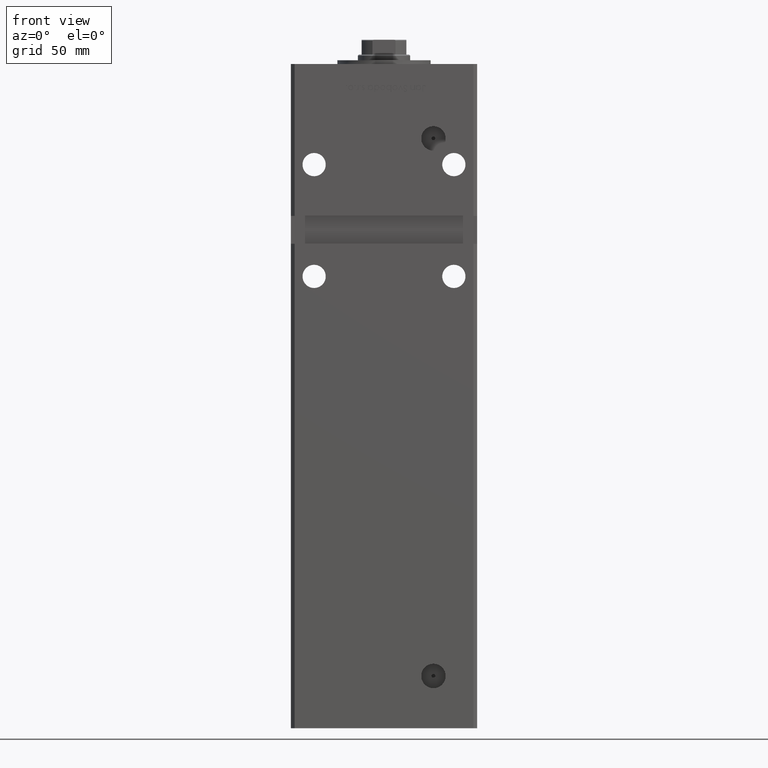
[diagram: clean part render]
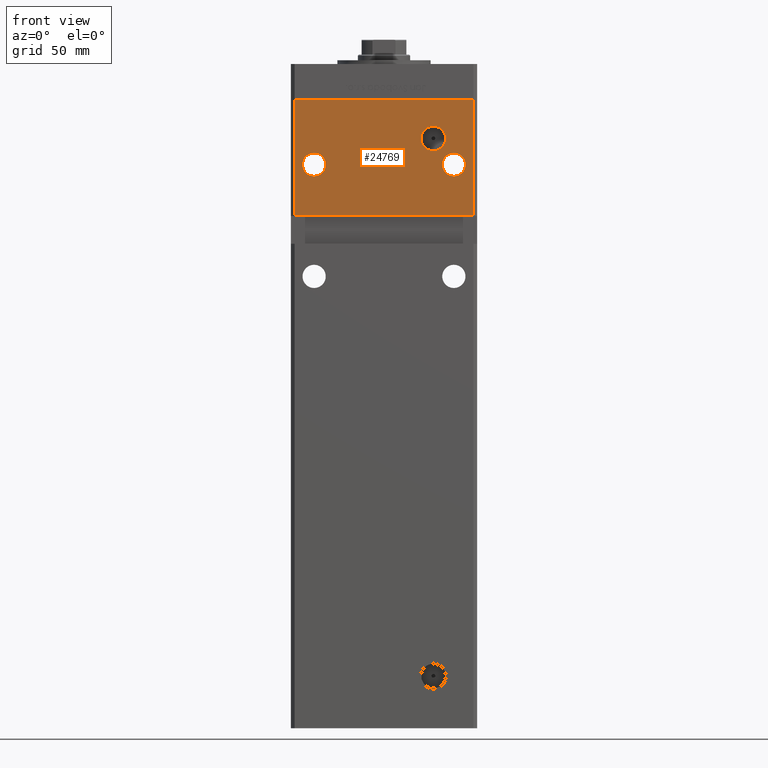
[diagram: same view with one face highlighted and labeled with its STEP entity id]
A machine part, front view. The second image highlights one B-rep face of the part: STEP entity #24769.
In plain terms, the highlighted planar face has unit normal (0, 1, 0).
Its self-contained STEP definition (entity closure, byte-faithful):
#123 = ORIENTED_EDGE ( 'NONE', *, *, #9964, .T. ) ;
#530 = CARTESIAN_POINT ( 'NONE',  ( 37.50000000000000000, -43.50000000000000000, 289.7499999999999432 ) ) ;
#574 = AXIS2_PLACEMENT_3D ( 'NONE', #9625, #21984, #20930 ) ;
#584 = CARTESIAN_POINT ( 'NONE',  ( 47.99999999999998579, -43.50000000000000000, 256.0000000000000000 ) ) ;
#779 = FACE_OUTER_BOUND ( 'NONE', #25756, .T. ) ;
#1305 = FACE_BOUND ( 'NONE', #42622, .T. ) ;
#1528 = VECTOR ( 'NONE', #45875, 1000.000000000000000 ) ;
#1568 = DIRECTION ( 'NONE',  ( -0.000000000000000000, 1.000000000000000000, -0.000000000000000000 ) ) ;
#2296 = DIRECTION ( 'NONE',  ( 0.000000000000000000, 1.000000000000000000, 0.000000000000000000 ) ) ;
#2505 = CARTESIAN_POINT ( 'NONE',  ( -47.99999999999998579, -43.50000000000000000, 318.5000000000000000 ) ) ;
#2675 = EDGE_CURVE ( 'NONE', #25901, #20693, #36004, .T. ) ;
#2904 = DIRECTION ( 'NONE',  ( 0.000000000000000000, 0.000000000000000000, 1.000000000000000000 ) ) ;
#3312 = DIRECTION ( 'NONE',  ( -0.000000000000000000, -0.000000000000000000, -1.000000000000000000 ) ) ;
#3689 = EDGE_LOOP ( 'NONE', ( #4355, #20163 ) ) ;
#4355 = ORIENTED_EDGE ( 'NONE', *, *, #16346, .T. ) ;
#4665 = VERTEX_POINT ( 'NONE', #28521 ) ;
#4781 = CARTESIAN_POINT ( 'NONE',  ( -47.99999999999998579, -43.50000000000000000, 256.0000000000000000 ) ) ;
#4808 = PLANE ( 'NONE',  #574 ) ;
#5048 = VERTEX_POINT ( 'NONE', #4781 ) ;
#6089 = DIRECTION ( 'NONE',  ( 0.000000000000000000, 1.000000000000000000, 0.000000000000000000 ) ) ;
#6339 = EDGE_CURVE ( 'NONE', #27441, #35430, #25796, .T. ) ;
#6813 = CARTESIAN_POINT ( 'NONE',  ( -37.50000000000000000, -43.50000000000000000, 283.5000000000000000 ) ) ;
#8282 = CARTESIAN_POINT ( 'NONE',  ( -49.99999999999998579, -43.50000000000000000, 256.0000000000000000 ) ) ;
#8955 = ORIENTED_EDGE ( 'NONE', *, *, #15367, .F. ) ;
#8960 = CARTESIAN_POINT ( 'NONE',  ( -47.99999999999998579, -43.50000000000000000, 318.5000000000000000 ) ) ;
#9081 = CIRCLE ( 'NONE', #52880, 6.249999999999977796 ) ;
#9305 = CARTESIAN_POINT ( 'NONE',  ( -37.50000000000000000, -43.50000000000000000, 283.5000000000000000 ) ) ;
#9352 = FACE_BOUND ( 'NONE', #3689, .T. ) ;
#9625 = CARTESIAN_POINT ( 'NONE',  ( -47.99999999999998579, -43.50000000000000000, 318.5000000000000000 ) ) ;
#9964 = EDGE_CURVE ( 'NONE', #41417, #5048, #10177, .T. ) ;
#10177 = LINE ( 'NONE', #42983, #21490 ) ;
#10837 = EDGE_CURVE ( 'NONE', #4665, #49377, #24084, .T. ) ;
#12009 = DIRECTION ( 'NONE',  ( -0.000000000000000000, -0.000000000000000000, -1.000000000000000000 ) ) ;
#12584 = CARTESIAN_POINT ( 'NONE',  ( 37.50000000000000000, -43.50000000000000000, 277.2500000000000000 ) ) ;
#13028 = CARTESIAN_POINT ( 'NONE',  ( 37.50000000000000000, -43.50000000000000000, 283.5000000000000000 ) ) ;
#14814 = DIRECTION ( 'NONE',  ( -0.000000000000000000, 1.000000000000000000, -0.000000000000000000 ) ) ;
#15367 = EDGE_CURVE ( 'NONE', #25329, #5048, #20649, .T. ) ;
#15858 = CARTESIAN_POINT ( 'NONE',  ( 47.99999999999998579, -43.50000000000000000, 318.5000000000000000 ) ) ;
#16346 = EDGE_CURVE ( 'NONE', #49377, #4665, #22506, .T. ) ;
#17722 = ORIENTED_EDGE ( 'NONE', *, *, #28002, .T. ) ;
#18020 = EDGE_CURVE ( 'NONE', #51028, #25329, #39884, .T. ) ;
#18754 = DIRECTION ( 'NONE',  ( 0.000000000000000000, 0.000000000000000000, -1.000000000000000000 ) ) ;
#18884 = LINE ( 'NONE', #2505, #1528 ) ;
#19436 = CARTESIAN_POINT ( 'NONE',  ( 47.99999999999998579, -43.50000000000000000, 318.5000000000000000 ) ) ;
#20163 = ORIENTED_EDGE ( 'NONE', *, *, #10837, .T. ) ;
#20569 = CARTESIAN_POINT ( 'NONE',  ( 26.49999999999995381, -43.50000000000000000, 290.9200000000000159 ) ) ;
#20649 = LINE ( 'NONE', #8282, #25073 ) ;
#20693 = VERTEX_POINT ( 'NONE', #45696 ) ;
#20930 = DIRECTION ( 'NONE',  ( 0.000000000000000000, -0.000000000000000000, 1.000000000000000000 ) ) ;
#21191 = FACE_BOUND ( 'NONE', #29939, .T. ) ;
#21490 = VECTOR ( 'NONE', #12009, 1000.000000000000000 ) ;
#21984 = DIRECTION ( 'NONE',  ( 0.000000000000000000, 1.000000000000000000, 0.000000000000000000 ) ) ;
#22167 = DIRECTION ( 'NONE',  ( 0.000000000000000000, 0.000000000000000000, 1.000000000000000000 ) ) ;
#22506 = CIRCLE ( 'NONE', #52565, 6.579999999999975202 ) ;
#22514 = CARTESIAN_POINT ( 'NONE',  ( 37.50000000000000000, -43.50000000000000000, 283.5000000000000000 ) ) ;
#23021 = AXIS2_PLACEMENT_3D ( 'NONE', #22514, #27618, #2904 ) ;
#24084 = CIRCLE ( 'NONE', #30959, 6.579999999999975202 ) ;
#24769 = ADVANCED_FACE ( 'NONE', ( #21191, #1305, #779, #9352 ), #4808, .F. ) ;
#24956 = DIRECTION ( 'NONE',  ( -1.000000000000000000, -0.000000000000000000, -0.000000000000000000 ) ) ;
#25073 = VECTOR ( 'NONE', #24956, 1000.000000000000000 ) ;
#25329 = VERTEX_POINT ( 'NONE', #584 ) ;
#25756 = EDGE_LOOP ( 'NONE', ( #123, #8955, #33031, #41934 ) ) ;
#25796 = CIRCLE ( 'NONE', #49820, 6.249999999999977796 ) ;
#25901 = VERTEX_POINT ( 'NONE', #36244 ) ;
#27233 = ORIENTED_EDGE ( 'NONE', *, *, #2675, .T. ) ;
#27441 = VERTEX_POINT ( 'NONE', #12584 ) ;
#27618 = DIRECTION ( 'NONE',  ( 0.000000000000000000, 1.000000000000000000, 0.000000000000000000 ) ) ;
#28002 = EDGE_CURVE ( 'NONE', #20693, #25901, #9081, .T. ) ;
#28521 = CARTESIAN_POINT ( 'NONE',  ( 26.49999999999995381, -43.50000000000000000, 304.0799999999999841 ) ) ;
#29939 = EDGE_LOOP ( 'NONE', ( #51717, #52202 ) ) ;
#30348 = VECTOR ( 'NONE', #3312, 1000.000000000000000 ) ;
#30599 = CARTESIAN_POINT ( 'NONE',  ( 26.49999999999995381, -43.50000000000000000, 297.5000000000000000 ) ) ;
#30959 = AXIS2_PLACEMENT_3D ( 'NONE', #48162, #14814, #52190 ) ;
#31810 = DIRECTION ( 'NONE',  ( 0.000000000000000000, 1.000000000000000000, 0.000000000000000000 ) ) ;
#33031 = ORIENTED_EDGE ( 'NONE', *, *, #18020, .F. ) ;
#33451 = EDGE_CURVE ( 'NONE', #35430, #27441, #39227, .T. ) ;
#35430 = VERTEX_POINT ( 'NONE', #530 ) ;
#36004 = CIRCLE ( 'NONE', #37707, 6.249999999999977796 ) ;
#36244 = CARTESIAN_POINT ( 'NONE',  ( -37.50000000000000000, -43.50000000000000000, 277.2500000000000000 ) ) ;
#37536 = EDGE_CURVE ( 'NONE', #41417, #51028, #18884, .T. ) ;
#37707 = AXIS2_PLACEMENT_3D ( 'NONE', #9305, #6089, #50700 ) ;
#39227 = CIRCLE ( 'NONE', #23021, 6.249999999999977796 ) ;
#39884 = LINE ( 'NONE', #19436, #30348 ) ;
#41417 = VERTEX_POINT ( 'NONE', #8960 ) ;
#41934 = ORIENTED_EDGE ( 'NONE', *, *, #37536, .F. ) ;
#42622 = EDGE_LOOP ( 'NONE', ( #17722, #27233 ) ) ;
#42983 = CARTESIAN_POINT ( 'NONE',  ( -47.99999999999998579, -43.50000000000000000, 318.5000000000000000 ) ) ;
#45696 = CARTESIAN_POINT ( 'NONE',  ( -37.50000000000000000, -43.50000000000000000, 289.7499999999999432 ) ) ;
#45875 = DIRECTION ( 'NONE',  ( 1.000000000000000000, 0.000000000000000000, 0.000000000000000000 ) ) ;
#47950 = DIRECTION ( 'NONE',  ( 0.000000000000000000, 0.000000000000000000, 1.000000000000000000 ) ) ;
#48162 = CARTESIAN_POINT ( 'NONE',  ( 26.49999999999995381, -43.50000000000000000, 297.5000000000000000 ) ) ;
#49377 = VERTEX_POINT ( 'NONE', #20569 ) ;
#49820 = AXIS2_PLACEMENT_3D ( 'NONE', #13028, #2296, #22167 ) ;
#50700 = DIRECTION ( 'NONE',  ( 0.000000000000000000, 0.000000000000000000, 1.000000000000000000 ) ) ;
#51028 = VERTEX_POINT ( 'NONE', #15858 ) ;
#51717 = ORIENTED_EDGE ( 'NONE', *, *, #33451, .T. ) ;
#52190 = DIRECTION ( 'NONE',  ( 0.000000000000000000, 0.000000000000000000, -1.000000000000000000 ) ) ;
#52202 = ORIENTED_EDGE ( 'NONE', *, *, #6339, .T. ) ;
#52565 = AXIS2_PLACEMENT_3D ( 'NONE', #30599, #1568, #18754 ) ;
#52880 = AXIS2_PLACEMENT_3D ( 'NONE', #6813, #31810, #47950 ) ;